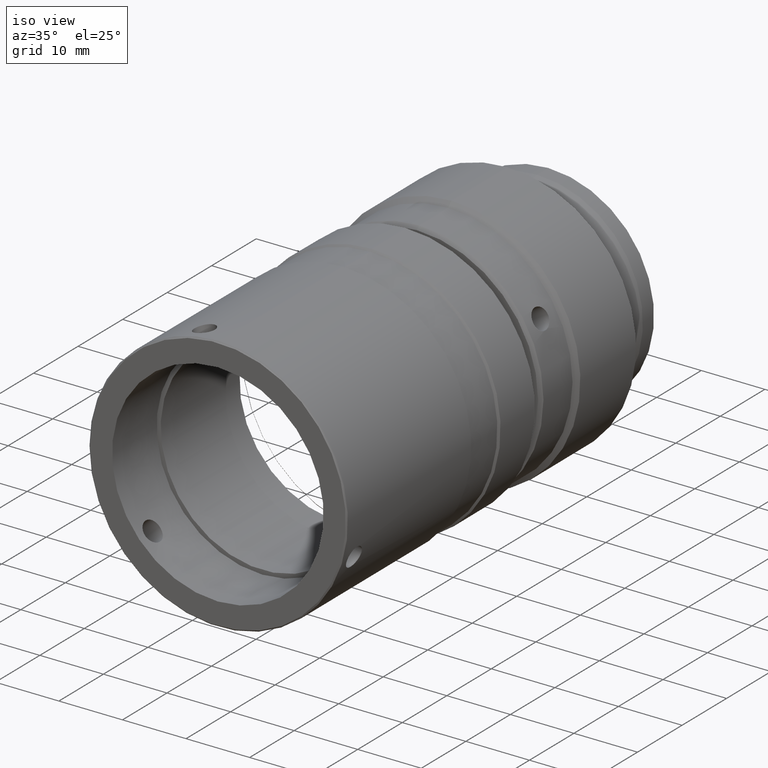
[diagram: clean part render]
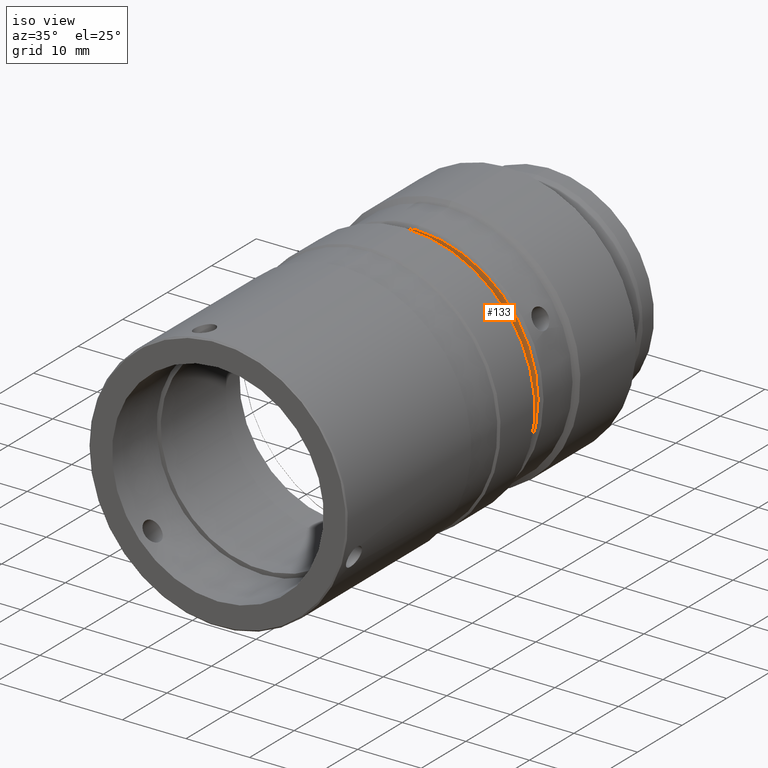
[diagram: same view with one face highlighted and labeled with its STEP entity id]
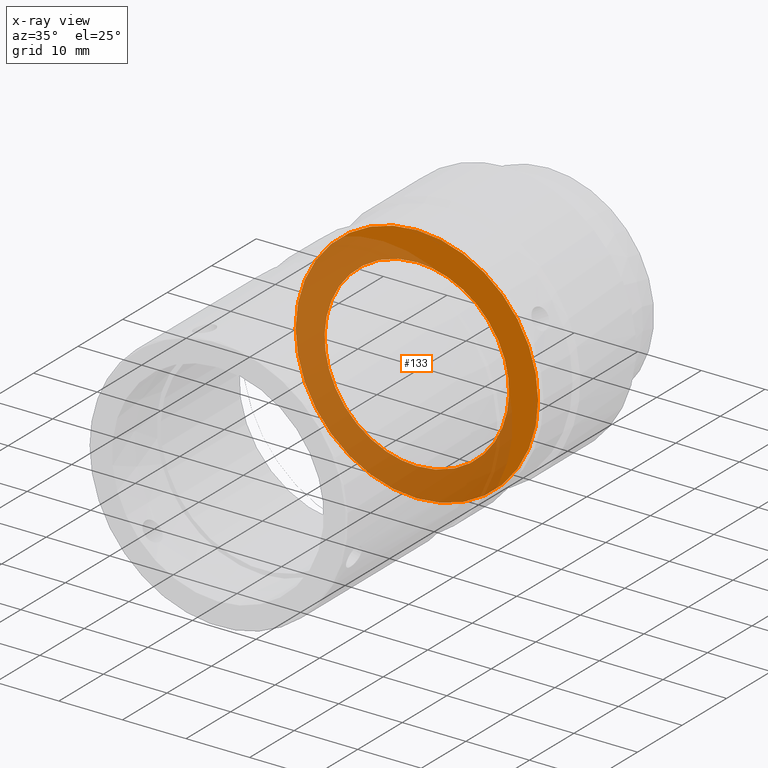
[diagram: x-ray of the same camera — body ghosted, the highlighted face saturated]
A machine part, iso view. The second image highlights one B-rep face of the part: STEP entity #133.
The next image is the same camera in x-ray: the body ghosted, the highlighted face saturated — about 62% of this face is hidden behind the body in this view.
In plain terms, the highlighted planar face has unit normal (-0, 1, 0).
Its self-contained STEP definition (entity closure, byte-faithful):
#4 = CARTESIAN_POINT ( 'NONE',  ( 33.61452285185216482, 32.35366667322868039, 51.42656891384631024 ) ) ;
#17 = CARTESIAN_POINT ( 'NONE',  ( 59.87704439935844647, 32.35366667322866618, 40.58036574328632184 ) ) ;
#18 = CARTESIAN_POINT ( 'NONE',  ( 33.32844979507660099, 32.35366667322865908, 35.66034409485015999 ) ) ;
#28 = CARTESIAN_POINT ( 'NONE',  ( 59.70888439379019275, 32.35366667322866618, 39.80433442327539240 ) ) ;
#29 = CARTESIAN_POINT ( 'NONE',  ( 40.03048973559684498, 32.35366667322865908, 29.95090808748402367 ) ) ;
#31 = CARTESIAN_POINT ( 'NONE',  ( 57.94895555036748647, 32.35366667322866618, 50.98503156139106096 ) ) ;
#36 = CARTESIAN_POINT ( 'NONE',  ( 53.30104640599451216, 32.35366667322867329, 31.01243495047760845 ) ) ;
#37 = CARTESIAN_POINT ( 'NONE',  ( 31.33360463022292919, 32.35366667322867329, 40.95214427051976713 ) ) ;
#39 = CARTESIAN_POINT ( 'NONE',  ( 47.48298999588966751, 32.35366667322867329, 57.73228516192451565 ) ) ;
#51 = CARTESIAN_POINT ( 'NONE',  ( 31.40036094608403161, 32.35366667322867329, 46.06500991295675362 ) ) ;
#53 = CARTESIAN_POINT ( 'NONE',  ( 59.67019904445407974, 32.35366667322866618, 47.03174061439960241 ) ) ;
#63 = CARTESIAN_POINT ( 'NONE',  ( 36.23471450988377995, 32.35366667322865908, 32.26569039588923715 ) ) ;
#65 = CARTESIAN_POINT ( 'NONE',  ( 45.71669807368204630, 32.35366667322866618, 57.82247805824021469 ) ) ;
#131 = CARTESIAN_POINT ( 'NONE',  ( 32.19663602779424139, 32.35366667322868750, 48.75974995481944774 ) ) ;
#133 = ADVANCED_FACE ( 'NONE', ( #1538, #238 ), #546, .F. ) ;
#154 = CARTESIAN_POINT ( 'NONE',  ( 33.57889423751300484, 32.35366667322866618, 51.37344150663739129 ) ) ;
#160 = CARTESIAN_POINT ( 'NONE',  ( 47.81795019905454325, 32.35366667322866618, 28.98662641397250894 ) ) ;
#161 = CARTESIAN_POINT ( 'NONE',  ( 32.52496491193434025, 32.35366667322865908, 49.51845270082769446 ) ) ;
#172 = CARTESIAN_POINT ( 'NONE',  ( 57.66288249359321583, 32.35366667322865908, 35.21880674240097164 ) ) ;
#173 = CARTESIAN_POINT ( 'NONE',  ( 43.18616085816926642, 32.35366667322865908, 57.61379330583647373 ) ) ;
#184 = CARTESIAN_POINT ( 'NONE',  ( 59.49739282412823371, 32.35366667322865908, 39.01262110337983557 ) ) ;
#185 = CARTESIAN_POINT ( 'NONE',  ( 40.11538085406349552, 32.35366667322867329, 29.91583298671603686 ) ) ;
#194 = CARTESIAN_POINT ( 'NONE',  ( 59.01048241336104638, 32.35366667322866618, 37.71447489100190609 ) ) ;
#195 = CARTESIAN_POINT ( 'NONE',  ( 33.39358914684129331, 32.35366667322867329, 35.55668347013961039 ) ) ;
#197 = CARTESIAN_POINT ( 'NONE',  ( 51.24691560983837491, 32.35366667322866618, 56.69446756876363480 ) ) ;
#204 = CARTESIAN_POINT ( 'NONE',  ( 31.60720630099392281, 32.35366667322865908, 39.61363504183042750 ) ) ;
#207 = CARTESIAN_POINT ( 'NONE',  ( 53.23004917272179881, 32.35366667322866618, 55.68643577532225919 ) ) ;
#219 = CARTESIAN_POINT ( 'NONE',  ( 31.84851667810298537, 32.35366667322866618, 38.83051009614839444 ) ) ;
#221 = CARTESIAN_POINT ( 'NONE',  ( 48.38103556077223999, 32.35366667322866618, 57.56102749480205460 ) ) ;
#231 = CARTESIAN_POINT ( 'NONE',  ( 37.27709683199864799, 32.35366667322868039, 31.47525651845644390 ) ) ;
#234 = CARTESIAN_POINT ( 'NONE',  ( 56.65020526926507927, 32.35366667322867329, 52.80927138843053115 ) ) ;
#238 = FACE_BOUND ( 'NONE', #498, .T. ) ;
#249 = B_SPLINE_CURVE_WITH_KNOTS ( 'NONE', 3,
 ( #825, #1298, #976, #1122, #1630, #1114, #173, #1916, #1934, #2072, #627, #1759, #1474, #1282, #810, #637, #1750, #1291, #483, #1105, #1460, #1924, #1613, #1274, #334, #1789, #946, #1134, #473, #1620, #619, #4, #154, #802, #1778, #161, #296, #653, #1596, #1308, #131, #786, #1948, #494, #1144, #986, #1330, #354, #51, #1494, #1653, #838, #1352, #539, #1992, #37, #393, #1204, #1167, #885, #204, #219, #1007, #1677, #685, #1520, #1190, #1364, #1341, #1833, #1029, #18, #195, #873, #380, #1044, #345, #63, #1486, #231, #860, #550, #998, #1177, #1980, #1822, #1642, #29, #185, #710, #2004, #527, #1845, #506, #1689, #848, #675, #367, #1016, #1662, #1972, #665 ),
 .UNSPECIFIED., .F., .F.,
 ( 4, 1, 1, 1, 1, 2, 2, 1, 1, 1, 1, 2, 2, 1, 1, 1, 2, 2, 2, 1, 1, 1, 2, 2, 1, 1, 1, 1, 2, 2, 1, 1, 1, 1, 2, 2, 2, 1, 1, 1, 1, 2, 2, 1, 1, 1, 1, 2, 2, 1, 1, 1, 2, 2, 2, 1, 1, 1, 2, 2, 1, 1, 1, 1, 2, 2, 1, 1, 1, 1, 2, 2, 4 ),
 ( 0.000000000000000000, 0.03124999999999713424, 0.04687499999999548278, 0.05468749999999440725, 0.05859374999999359540, 0.06054687499999347050, 0.06249999999999334560, 0.09374999999998745448, 0.1093749999999844430, 0.1171874999999829442, 0.1210937499999821948, 0.1230468749999818201, 0.1249999999999814454, 0.1562499999999762412, 0.1718749999999735212, 0.1796874999999723554, 0.1835937499999717726, 0.1874999999999712175, 0.2499999999999609757, 0.2812499999999558686, 0.2968749999999536482, 0.3046874999999525380, 0.3085937499999521494, 0.3124999999999518163, 0.3437499999999474865, 0.3593749999999454325, 0.3671874999999447109, 0.3710937499999443778, 0.3730468749999444333, 0.3749999999999444888, 0.4062499999999449884, 0.4218749999999449884, 0.4296874999999448219, 0.4335937499999448219, 0.4355468749999445444, 0.4374999999999443223, 0.4999999999999349964, 0.5312499999999302780, 0.5468749999999279465, 0.5546874999999268363, 0.5585937499999266143, 0.5605468749999267253, 0.5624999999999268363, 0.5937499999999262812, 0.6093749999999260591, 0.6171874999999261702, 0.6210937499999260591, 0.6230468749999262812, 0.6249999999999266143, 0.6562499999999340528, 0.6718749999999378275, 0.6796874999999397149, 0.6835937499999407141, 0.6874999999999418243, 0.7499999999999572564, 0.7812499999999650280, 0.7968749999999690248, 0.8046874999999711342, 0.8085937499999720224, 0.8124999999999729106, 0.8437499999999804601, 0.8593749999999842348, 0.8671874999999862332, 0.8710937499999871214, 0.8730468749999874545, 0.8749999999999876765, 0.9062499999999876765, 0.9218749999999880096, 0.9296874999999882316, 0.9335937499999886757, 0.9355468749999887867, 0.9374999999999890088, 1.000000000000000000 ),
 .UNSPECIFIED. ) ;
#296 = CARTESIAN_POINT ( 'NONE',  ( 32.35055287308178862, 32.35366667322865908, 49.12802491399220628 ) ) ;
#312 = AXIS2_PLACEMENT_3D ( 'NONE', #881, #1023, #558 ) ;
#334 = CARTESIAN_POINT ( 'NONE',  ( 36.92933069860854545, 32.35366667322866618, 54.95881906013663354 ) ) ;
#344 = CARTESIAN_POINT ( 'NONE',  ( 52.77736842769906644, 32.35366667322866618, 30.69743312727534601 ) ) ;
#345 = CARTESIAN_POINT ( 'NONE',  ( 35.68237735935146304, 32.35366667322868039, 32.76935622742102083 ) ) ;
#353 = CARTESIAN_POINT ( 'NONE',  ( 59.06877062519101429, 32.35366667322866618, 37.85605105298265016 ) ) ;
#354 = CARTESIAN_POINT ( 'NONE',  ( 31.40627820640228052, 32.35366667322866618, 46.09556681037255288 ) ) ;
#356 = CARTESIAN_POINT ( 'NONE',  ( 59.19142681749190160, 32.35366667322866618, 48.47772775427478109 ) ) ;
#367 = CARTESIAN_POINT ( 'NONE',  ( 42.86582369047044949, 32.35366667322866618, 29.09026336180286521 ) ) ;
#369 = CARTESIAN_POINT ( 'NONE',  ( 59.82762574011645995, 32.35366667322866618, 46.34695746955237183 ) ) ;
#380 = CARTESIAN_POINT ( 'NONE',  ( 34.00257144070989312, 32.35366667322866618, 34.61331585400614586 ) ) ;
#382 = CARTESIAN_POINT ( 'NONE',  ( 49.15705605430147074, 32.35366667322866618, 57.39286955854722549 ) ) ;
#391 = CIRCLE ( 'NONE', #1846, 19.06999999999999673 ) ;
#393 = CARTESIAN_POINT ( 'NONE',  ( 31.34758973609241650, 32.35366667322865908, 40.87018758464579093 ) ) ;
#395 = CARTESIAN_POINT ( 'NONE',  ( 59.42888866734381992, 32.35366667322866618, 47.81486556008497502 ) ) ;
#454 = CARTESIAN_POINT ( 'NONE',  ( 48.66297231417699720, 32.35366667322866618, 29.13376476073692700 ) ) ;
#473 = CARTESIAN_POINT ( 'NONE',  ( 34.04608443383970950, 32.35366667322866618, 52.03897275799246813 ) ) ;
#481 = CARTESIAN_POINT ( 'NONE',  ( 50.13088040471721030, 32.35366667322866618, 29.53250183351265079 ) ) ;
#483 = CARTESIAN_POINT ( 'NONE',  ( 39.24993482825678370, 32.35366667322866618, 56.35561828205292301 ) ) ;
#494 = CARTESIAN_POINT ( 'NONE',  ( 31.56852095164693139, 32.35366667322867329, 46.84104123294641653 ) ) ;
#496 = ORIENTED_EDGE ( 'NONE', *, *, #664, .F. ) ;
#498 = EDGE_LOOP ( 'NONE', ( #532, #1646 ) ) ;
#505 = CARTESIAN_POINT ( 'NONE',  ( 59.26707205299372561, 32.35366667322866618, 38.34882201343996400 ) ) ;
#506 = CARTESIAN_POINT ( 'NONE',  ( 42.12034926789485212, 32.35366667322865908, 29.25250610704558696 ) ) ;
#516 = CARTESIAN_POINT ( 'NONE',  ( 52.02747051716576010, 32.35366667322866618, 30.28975737417543002 ) ) ;
#519 = CARTESIAN_POINT ( 'NONE',  ( 59.22268580376973546, 32.35366667322865908, 48.39530170290387900 ) ) ;
#527 = CARTESIAN_POINT ( 'NONE',  ( 40.66483685805470571, 32.35366667322866618, 29.69431844784382335 ) ) ;
#532 = ORIENTED_EDGE ( 'NONE', *, *, #1963, .F. ) ;
#539 = CARTESIAN_POINT ( 'NONE',  ( 31.24730663013125920, 32.35366667322865908, 41.52674473334031546 ) ) ;
#540 = CARTESIAN_POINT ( 'NONE',  ( 57.88381619860237493, 32.35366667322866618, 51.08869218610270480 ) ) ;
#546 = PLANE ( 'NONE',  #312 ) ;
#550 = CARTESIAN_POINT ( 'NONE',  ( 37.53482158699635107, 32.35366667322866618, 31.29850800725362348 ) ) ;
#558 = DIRECTION ( 'NONE',  ( 0.000000000000000000, -0.000000000000000000, 1.000000000000000000 ) ) ;
#617 = CARTESIAN_POINT ( 'NONE',  ( 48.17152691283271082, 32.35366667322866618, 29.04558704844750494 ) ) ;
#619 = CARTESIAN_POINT ( 'NONE',  ( 33.68485090397460624, 32.35366667322867329, 51.52996817220684989 ) ) ;
#627 = CARTESIAN_POINT ( 'NONE',  ( 41.92964988691062445, 32.35366667322866618, 57.35418420004409512 ) ) ;
#637 = CARTESIAN_POINT ( 'NONE',  ( 40.42875903593473907, 32.35366667322867329, 56.85440108354531930 ) ) ;
#643 = CARTESIAN_POINT ( 'NONE',  ( 48.09122341524535926, 32.35366667322867329, 29.03157856953898275 ) ) ;
#653 = CARTESIAN_POINT ( 'NONE',  ( 32.26692293208026285, 32.35366667322866618, 48.93090076524136123 ) ) ;
#663 = CARTESIAN_POINT ( 'NONE',  ( 53.45533331201309579, 32.35366667322867329, 31.10982315100417495 ) ) ;
#664 = EDGE_CURVE ( 'NONE', #1331, #1331, #391, .T. ) ;
#665 = CARTESIAN_POINT ( 'NONE',  ( 45.56070727176069113, 32.35366667322866618, 28.82289759800396212 ) ) ;
#672 = CARTESIAN_POINT ( 'NONE',  ( 45.56070727176069113, 32.35366667322866618, 28.82289759800396212 ) ) ;
#674 = CARTESIAN_POINT ( 'NONE',  ( 59.87112713903977834, 32.35366667322865908, 40.54980884586873913 ) ) ;
#675 = CARTESIAN_POINT ( 'NONE',  ( 42.80814124184103520, 32.35366667322865908, 29.10162361699661560 ) ) ;
#678 = CARTESIAN_POINT ( 'NONE',  ( 53.84598301680221510, 32.35366667322867329, 55.27653959687285123 ) ) ;
#683 = CARTESIAN_POINT ( 'NONE',  ( 57.23132091161929225, 32.35366667322866618, 34.60640289827134097 ) ) ;
#685 = CARTESIAN_POINT ( 'NONE',  ( 32.08597852795187322, 32.35366667322867329, 38.16764790196666723 ) ) ;
#688 = CARTESIAN_POINT ( 'NONE',  ( 60.03009871530936437, 32.35366667322866618, 45.11863092290482768 ) ) ;
#700 = CARTESIAN_POINT ( 'NONE',  ( 54.00030851343515792, 32.35366667322865197, 55.17011913779663246 ) ) ;
#710 = CARTESIAN_POINT ( 'NONE',  ( 40.17206589758094992, 32.35366667322866618, 29.89261987565280165 ) ) ;
#778 = CARTESIAN_POINT ( 'NONE',  ( 46.66625137893353781, 32.35366667322866618, 28.84718188764915325 ) ) ;
#785 = CARTESIAN_POINT ( 'NONE',  ( 46.00389474771001375, 32.35366667322867329, 28.82049745103722316 ) ) ;
#786 = CARTESIAN_POINT ( 'NONE',  ( 32.01033329244460646, 32.35366667322866618, 48.29655364278702478 ) ) ;
#802 = CARTESIAN_POINT ( 'NONE',  ( 33.27495472552242717, 32.35366667322867329, 50.91403432812886365 ) ) ;
#809 = CARTESIAN_POINT ( 'NONE',  ( 50.71131654751376061, 32.35366667322866618, 29.73870469707792452 ) ) ;
#810 = CARTESIAN_POINT ( 'NONE',  ( 40.48366274663206354, 32.35366667322865908, 56.87541197291832162 ) ) ;
#813 = VERTEX_POINT ( 'NONE', #672 ) ;
#824 = CARTESIAN_POINT ( 'NONE',  ( 56.19203427343730795, 32.35366667322865908, 33.36636251476961235 ) ) ;
#825 = CARTESIAN_POINT ( 'NONE',  ( 45.71669807368204630, 32.35366667322866618, 57.82247805824021469 ) ) ;
#837 = CARTESIAN_POINT ( 'NONE',  ( 59.85976688384534583, 32.35366667322866618, 40.49212639723757690 ) ) ;
#838 = CARTESIAN_POINT ( 'NONE',  ( 31.13649698539675015, 32.35366667322865908, 42.95758108250384311 ) ) ;
#845 = B_SPLINE_CURVE_WITH_KNOTS ( 'NONE', 3,
 ( #1452, #785, #778, #1946, #160, #2090, #643, #1459, #617, #454, #1297, #481, #1133, #809, #1143, #1788, #1104, #1749, #516, #344, #997, #36, #1156, #663, #1641, #1318, #824, #1006, #683, #1811, #1340, #172, #1971, #1484, #1329, #1473, #1979, #194, #1166, #353, #1801, #505, #184, #28, #1493, #1652, #837, #674, #17, #847, #1629, #1960, #1496, #688, #1332, #1192, #1159, #1018, #1510, #369, #53, #395, #1665, #519, #356, #1000, #1169, #1655, #1353, #1343, #850, #31, #540, #1031, #1824, #234, #1814, #887, #1009, #700, #678, #1680, #875, #207, #1835, #1804, #2005, #197, #1974, #863, #1994, #1847, #1534, #382, #1964, #1046, #1691, #1644, #221, #39, #1522, #65 ),
 .UNSPECIFIED., .F., .F.,
 ( 4, 1, 1, 1, 1, 2, 2, 1, 1, 1, 1, 2, 2, 1, 1, 1, 2, 2, 2, 1, 1, 1, 2, 2, 1, 1, 1, 1, 2, 2, 1, 1, 1, 1, 2, 2, 2, 1, 1, 1, 1, 2, 2, 1, 1, 1, 1, 2, 2, 1, 1, 1, 2, 2, 2, 1, 1, 1, 2, 2, 1, 1, 1, 1, 2, 2, 1, 1, 1, 1, 2, 2, 4 ),
 ( 0.000000000000000000, 0.03124999999998722550, 0.04687499999998083478, 0.05468749999997765676, 0.05859374999997608857, 0.06054687499997554734, 0.06249999999997500610, 0.09374999999997063460, 0.1093749999999687195, 0.1171874999999678035, 0.1210937499999675537, 0.1230468749999674427, 0.1249999999999673039, 0.1562499999999613087, 0.1718749999999583111, 0.1796874999999568123, 0.1835937499999558131, 0.1874999999999548139, 0.2499999999999414357, 0.2812499999999347189, 0.2968749999999315548, 0.3046874999999297784, 0.3085937499999290567, 0.3124999999999282796, 0.3437499999999217293, 0.3593749999999186207, 0.3671874999999170663, 0.3710937499999160671, 0.3730468749999157341, 0.3749999999999153455, 0.4062499999999120148, 0.4218749999999106270, 0.4296874999999101830, 0.4335937499999101830, 0.4355468749999101830, 0.4374999999999101274, 0.4999999999999158451, 0.5312499999999185096, 0.5468749999999197309, 0.5546874999999203970, 0.5585937499999208411, 0.5605468749999213962, 0.5624999999999219513, 0.5937499999999296119, 0.6093749999999337197, 0.6171874999999357181, 0.6210937499999363842, 0.6230468749999368283, 0.6249999999999372724, 0.6562499999999399369, 0.6718749999999410472, 0.6796874999999418243, 0.6835937499999420464, 0.6874999999999422684, 0.7499999999999464873, 0.7812499999999488187, 0.7968749999999501510, 0.8046874999999508171, 0.8085937499999514833, 0.8124999999999520384, 0.8437499999999596989, 0.8593749999999636957, 0.8671874999999654721, 0.8710937499999665823, 0.8730468749999671374, 0.8749999999999678035, 0.9062499999999783507, 0.9218749999999836797, 0.9296874999999860112, 0.9335937499999872324, 0.9355468749999876765, 0.9374999999999882316, 1.000000000000000000 ),
 .UNSPECIFIED. ) ;
#847 = CARTESIAN_POINT ( 'NONE',  ( 60.04823408789371797, 32.35366667322865908, 41.47805480205769157 ) ) ;
#848 = CARTESIAN_POINT ( 'NONE',  ( 42.72169471643385918, 32.35366667322866618, 29.11891942834382263 ) ) ;
#850 = CARTESIAN_POINT ( 'NONE',  ( 58.04562958424543240, 32.35366667322868039, 50.82902047709025339 ) ) ;
#860 = CARTESIAN_POINT ( 'NONE',  ( 37.43142232863529273, 32.35366667322867329, 31.36883605937659070 ) ) ;
#863 = CARTESIAN_POINT ( 'NONE',  ( 51.10533944785971983, 32.35366667322867329, 56.75275578059233084 ) ) ;
#873 = CARTESIAN_POINT ( 'NONE',  ( 33.42583799560477331, 32.35366667322868039, 35.50605718882853523 ) ) ;
#875 = CARTESIAN_POINT ( 'NONE',  ( 53.68945635123814952, 32.35366667322866618, 55.38249626332986253 ) ) ;
#881 = CARTESIAN_POINT ( 'NONE',  ( 45.56070727176069113, 32.35366667322866618, 28.82289759800396567 ) ) ;
#885 = CARTESIAN_POINT ( 'NONE',  ( 31.44977960532935413, 32.35366667322867329, 40.29841818668330689 ) ) ;
#887 = CARTESIAN_POINT ( 'NONE',  ( 55.04269083553808173, 32.35366667322866618, 54.37968526037556671 ) ) ;
#903 = EDGE_CURVE ( 'NONE', #988, #813, #249, .T. ) ;
#915 = DIRECTION ( 'NONE',  ( 0.000000000000000000, 0.000000000000000000, 1.000000000000000000 ) ) ;
#938 = DIRECTION ( 'NONE',  ( -0.000000000000000000, 1.000000000000000000, 0.000000000000000000 ) ) ;
#946 = CARTESIAN_POINT ( 'NONE',  ( 35.08537107201770056, 32.35366667322866618, 53.27901314148949297 ) ) ;
#976 = CARTESIAN_POINT ( 'NONE',  ( 44.61100046620767756, 32.35366667322866618, 57.79816622665704529 ) ) ;
#986 = CARTESIAN_POINT ( 'NONE',  ( 31.43493427294370690, 32.35366667322867329, 46.23969578440872397 ) ) ;
#988 = VERTEX_POINT ( 'NONE', #1267 ) ;
#997 = CARTESIAN_POINT ( 'NONE',  ( 53.14503532169628386, 32.35366667322865908, 30.91576091660063241 ) ) ;
#998 = CARTESIAN_POINT ( 'NONE',  ( 37.58794899420733060, 32.35366667322865908, 31.26287939291298201 ) ) ;
#1000 = CARTESIAN_POINT ( 'NONE',  ( 59.17041592813156825, 32.35366667322867329, 48.53263146494079905 ) ) ;
#1006 = CARTESIAN_POINT ( 'NONE',  ( 56.69570010498043899, 32.35366667322866618, 33.91869966531526615 ) ) ;
#1007 = CARTESIAN_POINT ( 'NONE',  ( 31.98358334136594650, 32.35366667322865908, 38.44289480413561222 ) ) ;
#1009 = CARTESIAN_POINT ( 'NONE',  ( 54.35498760257949868, 32.35366667322866618, 54.91530606701583395 ) ) ;
#1016 = CARTESIAN_POINT ( 'NONE',  ( 42.89637525922101702, 32.35366667322866618, 29.08434711766346936 ) ) ;
#1018 = CARTESIAN_POINT ( 'NONE',  ( 59.92033441304278085, 32.35366667322867329, 45.82981356746320500 ) ) ;
#1023 = DIRECTION ( 'NONE',  ( -0.000000000000000000, 1.000000000000000000, 0.000000000000000000 ) ) ;
#1029 = CARTESIAN_POINT ( 'NONE',  ( 33.23177576119928034, 32.35366667322867329, 35.81635517914942568 ) ) ;
#1031 = CARTESIAN_POINT ( 'NONE',  ( 57.85156734983802806, 32.35366667322866618, 51.13931846741532183 ) ) ;
#1044 = CARTESIAN_POINT ( 'NONE',  ( 34.62720007620242768, 32.35366667322867329, 33.83610426778918878 ) ) ;
#1046 = CARTESIAN_POINT ( 'NONE',  ( 48.55571062174450248, 32.35366667322868039, 57.52645623082180748 ) ) ;
#1104 = CARTESIAN_POINT ( 'NONE',  ( 50.87496364248955416, 32.35366667322867329, 29.80113294074229202 ) ) ;
#1105 = CARTESIAN_POINT ( 'NONE',  ( 38.50003691772840853, 32.35366667322866618, 55.94794252895689368 ) ) ;
#1114 = CARTESIAN_POINT ( 'NONE',  ( 43.26808814011141635, 32.35366667322866618, 57.62777313588834716 ) ) ;
#1122 = CARTESIAN_POINT ( 'NONE',  ( 43.84253245791467890, 32.35366667322866618, 57.71404311956906241 ) ) ;
#1133 = CARTESIAN_POINT ( 'NONE',  ( 50.51849569672057072, 32.35366667322865908, 29.66756849677181052 ) ) ;
#1134 = CARTESIAN_POINT ( 'NONE',  ( 34.58170524048409789, 32.35366667322866618, 52.72667599095532154 ) ) ;
#1143 = CARTESIAN_POINT ( 'NONE',  ( 50.79374259888047760, 32.35366667322867329, 29.76996368335408860 ) ) ;
#1144 = CARTESIAN_POINT ( 'NONE',  ( 31.47707916598363553, 32.35366667322867329, 46.44086431093283807 ) ) ;
#1156 = CARTESIAN_POINT ( 'NONE',  ( 53.40470703070430147, 32.35366667322866618, 31.07757430224203077 ) ) ;
#1159 = CARTESIAN_POINT ( 'NONE',  ( 59.92981560935005803, 32.35366667322867329, 45.77518807159775349 ) ) ;
#1166 = CARTESIAN_POINT ( 'NONE',  ( 59.04555751412831199, 32.35366667322867329, 37.79936600946656000 ) ) ;
#1167 = CARTESIAN_POINT ( 'NONE',  ( 31.36160189304726487, 32.35366667322866618, 40.78986358800933232 ) ) ;
#1169 = CARTESIAN_POINT ( 'NONE',  ( 59.16025756010113668, 32.35366667322865908, 48.55894879789033070 ) ) ;
#1172 = CARTESIAN_POINT ( 'NONE',  ( 45.63870267272136516, 32.35366667322866618, 43.32268782812209196 ) ) ;
#1177 = CARTESIAN_POINT ( 'NONE',  ( 38.04735617270230819, 32.35366667322868750, 30.95893988093043347 ) ) ;
#1190 = CARTESIAN_POINT ( 'NONE',  ( 32.11714778534181391, 32.35366667322865908, 38.08642685835321373 ) ) ;
#1192 = CARTESIAN_POINT ( 'NONE',  ( 59.94380071521929665, 32.35366667322865908, 45.69323138572404730 ) ) ;
#1204 = CARTESIAN_POINT ( 'NONE',  ( 31.35707093239991394, 32.35366667322865908, 40.81556208878019021 ) ) ;
#1267 = CARTESIAN_POINT ( 'NONE',  ( 45.71669807368204630, 32.35366667322866618, 57.82247805824021469 ) ) ;
#1274 = CARTESIAN_POINT ( 'NONE',  ( 37.82207203342758817, 32.35366667322868039, 55.53555250523849196 ) ) ;
#1282 = CARTESIAN_POINT ( 'NONE',  ( 40.56608879804836931, 32.35366667322866618, 56.90667095921455854 ) ) ;
#1291 = CARTESIAN_POINT ( 'NONE',  ( 39.91767153307475979, 32.35366667322866618, 56.65537494091560689 ) ) ;
#1297 = CARTESIAN_POINT ( 'NONE',  ( 49.34775545904273741, 32.35366667322866618, 29.29119145640667199 ) ) ;
#1298 = CARTESIAN_POINT ( 'NONE',  ( 45.27342288327471209, 32.35366667322867329, 57.82486246695668797 ) ) ;
#1308 = CARTESIAN_POINT ( 'NONE',  ( 32.20863472025109076, 32.35366667322867329, 48.78932460326075926 ) ) ;
#1318 = CARTESIAN_POINT ( 'NONE',  ( 55.12528623302362973, 32.35366667322867329, 32.31118523156729339 ) ) ;
#1329 = CARTESIAN_POINT ( 'NONE',  ( 58.37500772840016339, 32.35366667322867329, 36.36134942440877893 ) ) ;
#1330 = CARTESIAN_POINT ( 'NONE',  ( 31.41763846159623697, 32.35366667322866618, 46.15324925900180375 ) ) ;
#1331 = VERTEX_POINT ( 'NONE', #1949 ) ;
#1332 = CARTESIAN_POINT ( 'NONE',  ( 59.97477580877204417, 32.35366667322865908, 45.50187002415635362 ) ) ;
#1340 = CARTESIAN_POINT ( 'NONE',  ( 57.59255444147356684, 32.35366667322866618, 35.11540748404381418 ) ) ;
#1341 = CARTESIAN_POINT ( 'NONE',  ( 32.60577221877292686, 32.35366667322867329, 36.93391998368335294 ) ) ;
#1343 = CARTESIAN_POINT ( 'NONE',  ( 58.26395737357241700, 32.35366667322866618, 50.46135358308837482 ) ) ;
#1352 = CARTESIAN_POINT ( 'NONE',  ( 31.16316993932887058, 32.35366667322865908, 42.29528844830831957 ) ) ;
#1353 = CARTESIAN_POINT ( 'NONE',  ( 58.67163312667373276, 32.35366667322867329, 49.71145567255131681 ) ) ;
#1364 = CARTESIAN_POINT ( 'NONE',  ( 32.30601555991781737, 32.35366667322866618, 37.60165668849019482 ) ) ;
#1452 = CARTESIAN_POINT ( 'NONE',  ( 45.56070727176069113, 32.35366667322866618, 28.82289759800396212 ) ) ;
#1459 = CARTESIAN_POINT ( 'NONE',  ( 48.14583891157532491, 32.35366667322867329, 29.04105797167775194 ) ) ;
#1460 = CARTESIAN_POINT ( 'NONE',  ( 38.13237002373736573, 32.35366667322866618, 55.72961473963646739 ) ) ;
#1473 = CARTESIAN_POINT ( 'NONE',  ( 58.75244043350449630, 32.35366667322867329, 37.12692295541529575 ) ) ;
#1474 = CARTESIAN_POINT ( 'NONE',  ( 40.75890964894534818, 32.35366667322866618, 56.97780715956264430 ) ) ;
#1484 = CARTESIAN_POINT ( 'NONE',  ( 58.00245061991719808, 32.35366667322865908, 35.73134132811431130 ) ) ;
#1486 = CARTESIAN_POINT ( 'NONE',  ( 36.92241774284767786, 32.35366667322867329, 31.73006958924379362 ) ) ;
#1493 = CARTESIAN_POINT ( 'NONE',  ( 59.80032617945574458, 32.35366667322867329, 40.20451134529793080 ) ) ;
#1494 = CARTESIAN_POINT ( 'NONE',  ( 31.22917125755234125, 32.35366667322866618, 45.16732085419374698 ) ) ;
#1496 = CARTESIAN_POINT ( 'NONE',  ( 60.11423540611092875, 32.35366667322865908, 44.35008720793747727 ) ) ;
#1510 = CARTESIAN_POINT ( 'NONE',  ( 59.91580345239547967, 32.35366667322868039, 45.85551206823436132 ) ) ;
#1520 = CARTESIAN_POINT ( 'NONE',  ( 32.10698941731186551, 32.35366667322865908, 38.11274419130153035 ) ) ;
#1522 = CARTESIAN_POINT ( 'NONE',  ( 46.60394866751497744, 32.35366667322867329, 57.81770547431175089 ) ) ;
#1534 = CARTESIAN_POINT ( 'NONE',  ( 49.94876936644167387, 32.35366667322866618, 57.18137799200403038 ) ) ;
#1538 = FACE_OUTER_BOUND ( 'NONE', #1984, .T. ) ;
#1596 = CARTESIAN_POINT ( 'NONE',  ( 32.23184783131348041, 32.35366667322867329, 48.84600964677681390 ) ) ;
#1613 = CARTESIAN_POINT ( 'NONE',  ( 37.87269831473526693, 32.35366667322866618, 55.56780135399974085 ) ) ;
#1620 = CARTESIAN_POINT ( 'NONE',  ( 33.79127136305367429, 32.35366667322865908, 51.68429366884275566 ) ) ;
#1629 = CARTESIAN_POINT ( 'NONE',  ( 60.13366198842984289, 32.35366667322866618, 42.35848813400054524 ) ) ;
#1630 = CARTESIAN_POINT ( 'NONE',  ( 43.45938799000617081, 32.35366667322866618, 57.65873719267381148 ) ) ;
#1641 = CARTESIAN_POINT ( 'NONE',  ( 54.34807464685988521, 32.35366667322866618, 31.68655659612743136 ) ) ;
#1642 = CARTESIAN_POINT ( 'NONE',  ( 39.83336558684173667, 32.35366667322868039, 30.03453802848808962 ) ) ;
#1644 = CARTESIAN_POINT ( 'NONE',  ( 48.41158165279311731, 32.35366667322867329, 57.55511229531773409 ) ) ;
#1646 = ORIENTED_EDGE ( 'NONE', *, *, #903, .F. ) ;
#1652 = CARTESIAN_POINT ( 'NONE',  ( 59.84247107249718312, 32.35366667322867329, 40.40567987182788556 ) ) ;
#1653 = CARTESIAN_POINT ( 'NONE',  ( 31.14374335701620566, 32.35366667322867329, 44.28688752223978753 ) ) ;
#1655 = CARTESIAN_POINT ( 'NONE',  ( 58.97138978552730038, 32.35366667322866618, 49.04371896774812711 ) ) ;
#1662 = CARTESIAN_POINT ( 'NONE',  ( 43.79424016394203534, 32.35366667322868039, 28.91312389523580606 ) ) ;
#1665 = CARTESIAN_POINT ( 'NONE',  ( 59.29382200407933112, 32.35366667322867329, 48.20248085210187128 ) ) ;
#1677 = CARTESIAN_POINT ( 'NONE',  ( 32.05471954167452253, 32.35366667322865908, 38.25007395333627613 ) ) ;
#1680 = CARTESIAN_POINT ( 'NONE',  ( 53.74258375844382130, 32.35366667322865908, 55.34686764899321076 ) ) ;
#1689 = CARTESIAN_POINT ( 'NONE',  ( 42.52052618990924060, 32.35366667322866618, 29.16106432138318993 ) ) ;
#1691 = CARTESIAN_POINT ( 'NONE',  ( 48.46926409934692259, 32.35366667322865908, 57.54375204095865115 ) ) ;
#1749 = CARTESIAN_POINT ( 'NONE',  ( 51.35973381235632473, 32.35366667322866618, 29.99000071531948564 ) ) ;
#1750 = CARTESIAN_POINT ( 'NONE',  ( 40.40244170295354564, 32.35366667322866618, 56.84424271550230401 ) ) ;
#1759 = CARTESIAN_POINT ( 'NONE',  ( 41.14652494110836756, 32.35366667322866618, 57.11287382288640657 ) ) ;
#1778 = CARTESIAN_POINT ( 'NONE',  ( 32.90239761703746524, 32.35366667322866618, 50.28402623183411180 ) ) ;
#1788 = CARTESIAN_POINT ( 'NONE',  ( 50.84864630954357523, 32.35366667322866618, 29.79097457271328153 ) ) ;
#1789 = CARTESIAN_POINT ( 'NONE',  ( 36.15211911239322262, 32.35366667322866618, 54.33419042464574034 ) ) ;
#1801 = CARTESIAN_POINT ( 'NONE',  ( 59.08076931764848894, 32.35366667322866618, 37.88562570142501329 ) ) ;
#1804 = CARTESIAN_POINT ( 'NONE',  ( 51.83446754541844825, 32.35366667322866618, 56.43642558891092165 ) ) ;
#1811 = CARTESIAN_POINT ( 'NONE',  ( 57.48613398239833572, 32.35366667322865908, 34.96108198741260509 ) ) ;
#1814 = CARTESIAN_POINT ( 'NONE',  ( 55.59502798607954333, 32.35366667322866618, 53.87601942883477335 ) ) ;
#1822 = CARTESIAN_POINT ( 'NONE',  ( 39.44293779999965466, 32.35366667322866618, 30.20895006734455635 ) ) ;
#1824 = CARTESIAN_POINT ( 'NONE',  ( 57.27483390473921077, 32.35366667322865908, 52.03205980223209792 ) ) ;
#1833 = CARTESIAN_POINT ( 'NONE',  ( 33.01344797187336866, 32.35366667322865908, 36.18402207314852603 ) ) ;
#1835 = CARTESIAN_POINT ( 'NONE',  ( 52.60004107642182447, 32.35366667322866618, 56.05899288380845036 ) ) ;
#1845 = CARTESIAN_POINT ( 'NONE',  ( 41.32863594800584650, 32.35366667322866618, 29.46399767670499870 ) ) ;
#1846 = AXIS2_PLACEMENT_3D ( 'NONE', #1172, #938, #915 ) ;
#1847 = CARTESIAN_POINT ( 'NONE',  ( 50.61256846967661005, 32.35366667322866618, 56.95105721552307898 ) ) ;
#1916 = CARTESIAN_POINT ( 'NONE',  ( 43.13155564087733040, 32.35366667322866618, 57.60431574802389321 ) ) ;
#1924 = CARTESIAN_POINT ( 'NONE',  ( 37.97635893944258356, 32.35366667322865908, 55.63294070576221628 ) ) ;
#1934 = CARTESIAN_POINT ( 'NONE',  ( 43.10587843259164487, 32.35366667322865908, 57.59978860778929288 ) ) ;
#1946 = CARTESIAN_POINT ( 'NONE',  ( 47.43475776230185659, 32.35366667322865908, 28.93131188022163158 ) ) ;
#1948 = CARTESIAN_POINT ( 'NONE',  ( 31.78001252130700038, 32.35366667322866618, 47.63275455283480397 ) ) ;
#1949 = CARTESIAN_POINT ( 'NONE',  ( 45.63870267272136516, 32.35366667322866618, 62.39268782812208514 ) ) ;
#1960 = CARTESIAN_POINT ( 'NONE',  ( 60.14090836004428553, 32.35366667322866618, 43.68779457374086661 ) ) ;
#1963 = EDGE_CURVE ( 'NONE', #813, #988, #845, .T. ) ;
#1964 = CARTESIAN_POINT ( 'NONE',  ( 48.75687914197317951, 32.35366667322866618, 57.48431134031435619 ) ) ;
#1971 = CARTESIAN_POINT ( 'NONE',  ( 57.69851110792966153, 32.35366667322866618, 35.27193414960620288 ) ) ;
#1972 = CARTESIAN_POINT ( 'NONE',  ( 44.67328149231666146, 32.35366667322866618, 28.82770358284857437 ) ) ;
#1974 = CARTESIAN_POINT ( 'NONE',  ( 51.16202449137498576, 32.35366667322868039, 56.72954266953014013 ) ) ;
#1979 = CARTESIAN_POINT ( 'NONE',  ( 58.92685247235856139, 32.35366667322867329, 37.51735074225095445 ) ) ;
#1980 = CARTESIAN_POINT ( 'NONE',  ( 38.67736426898800062, 32.35366667322865908, 30.58638277245080062 ) ) ;
#1984 = EDGE_LOOP ( 'NONE', ( #496 ) ) ;
#1992 = CARTESIAN_POINT ( 'NONE',  ( 31.30262953666953507, 32.35366667322865908, 41.14350563208799372 ) ) ;
#1994 = CARTESIAN_POINT ( 'NONE',  ( 51.07576480052616574, 32.35366667322866618, 56.76475447260374096 ) ) ;
#2004 = CARTESIAN_POINT ( 'NONE',  ( 40.20164054602382464, 32.35366667322867329, 29.88062118319517069 ) ) ;
#2005 = CARTESIAN_POINT ( 'NONE',  ( 51.44403975858674016, 32.35366667322867329, 56.61083762776263484 ) ) ;
#2072 = CARTESIAN_POINT ( 'NONE',  ( 42.61443303155750328, 32.35366667322866618, 57.51161089562531714 ) ) ;
#2090 = CARTESIAN_POINT ( 'NONE',  ( 48.00928122869805748, 32.35366667322868039, 29.01759606521411072 ) ) ;